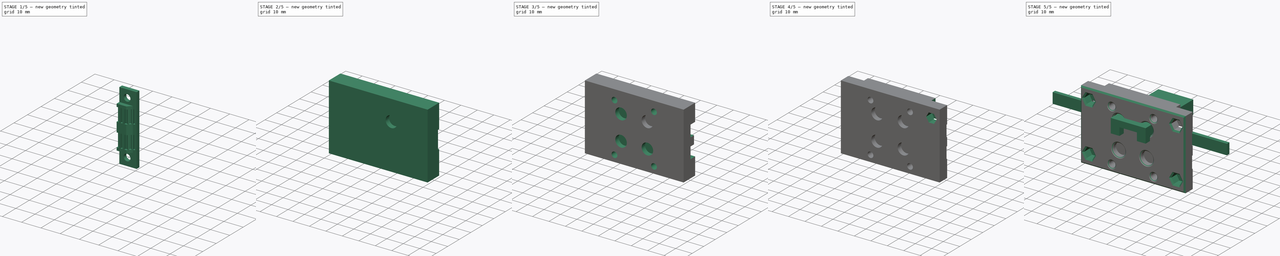
[diagram: build sequence overview — one tinted view per stage of 5, left to right]
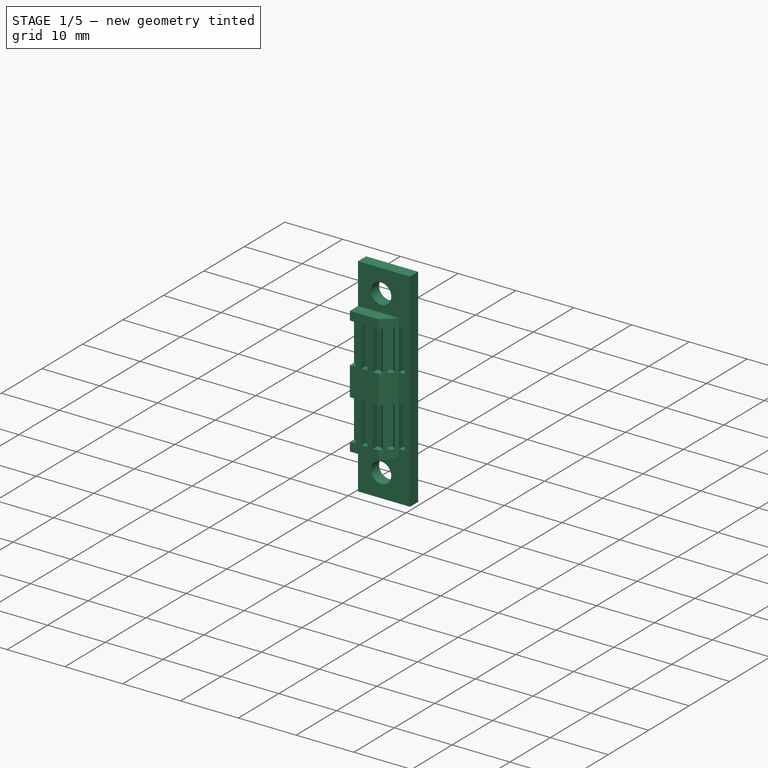
[diagram: stage 1 of 5 — iso view after this stage's code; geometry added in this stage tinted green]
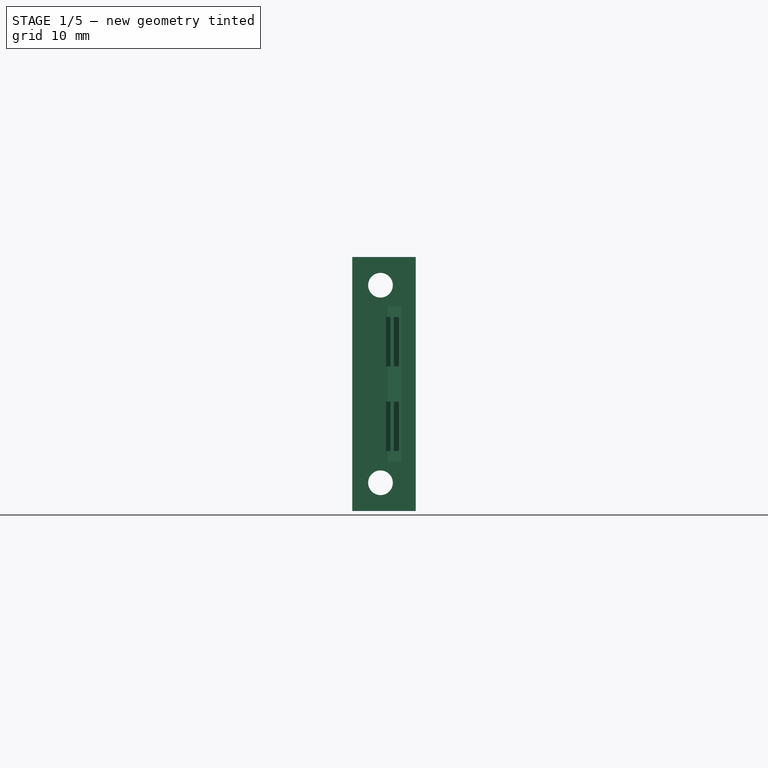
[diagram: stage 1 of 5 — front view after this stage's code; geometry added in this stage tinted green]
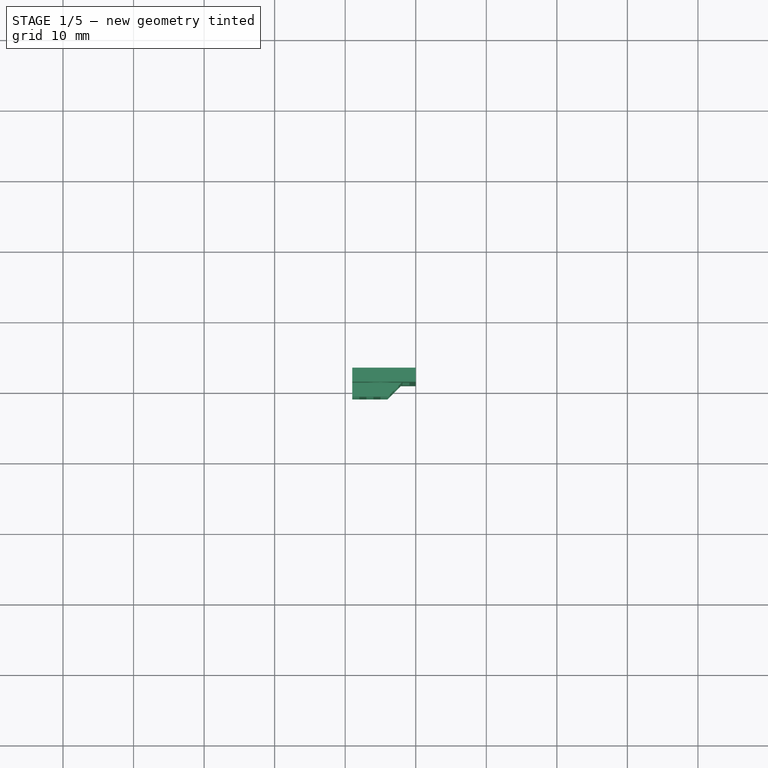
[diagram: stage 1 of 5 — top view after this stage's code; geometry added in this stage tinted green]
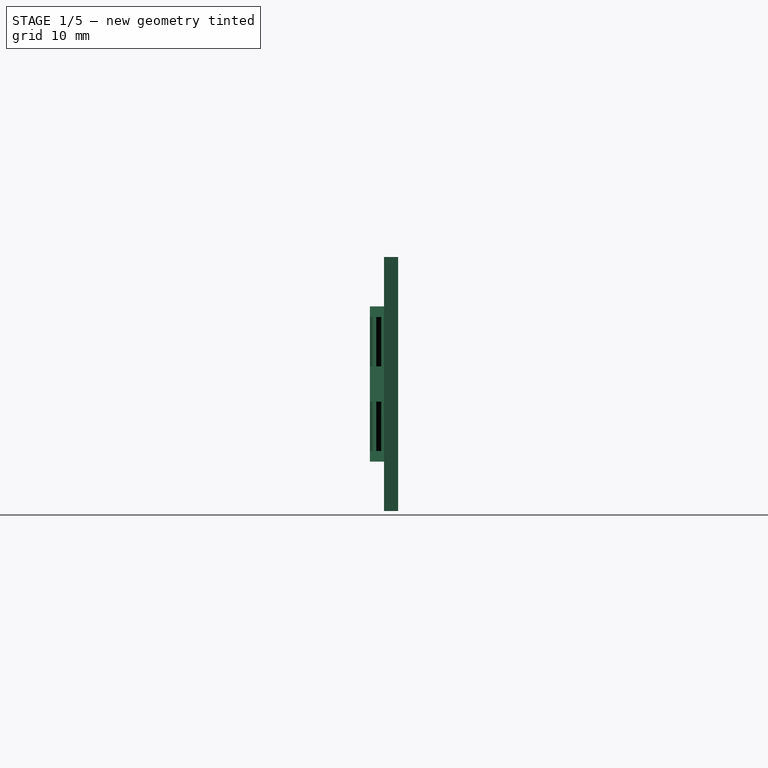
[diagram: stage 1 of 5 — right view after this stage's code; geometry added in this stage tinted green]
FCSTD DOCUMENT  (FreeCAD 1.0R39109 (Git))
Label: x-carriage
License: All rights reserved
LicenseURL: http://en.wikipedia.org/wiki/All_rights_reserved
objects: Sketcher::SketchObject×16, PartDesign::Pocket×11, PartDesign::Mirrored×8, PartDesign::Body×5, PartDesign::Pad×4, PartDesign::MultiTransform×3, PartDesign::Chamfer×2, Spreadsheet::Sheet×1, App::DocumentObjectGroup×1, PartDesign::FeatureBase×1, PartDesign::Groove×1, Part::Mirroring×1, App::Part×1
note: 116 computed .brp shape members not serialized (recipe doc carries the construction recipe); baked Part::Feature solids carry a one-line shape summary decoded from their .brp

FEATURE [PartDesign::Body] Body162  label="belt"
  AllowCompound = false
  Group = -> [Sketch475,Pad103]
  Origin = -> Origin309
  Tip = -> Pad103
FEATURE [Sketcher::SketchObject] Sketch476
  ArcFitTolerance = 1e-06
  AttachmentSupport = -> [XY_Plane309]
  FullyConstrained = true
  MakeInternals = false
  MapMode = 5
  sketch-geometry (6):
    g0: LineSegment StartX=28 StartY=-9 StartZ=0 EndX=30 EndY=-9 EndZ=0
    g1: LineSegment StartX=30 StartY=-9 StartZ=0 EndX=30 EndY=-7 EndZ=0
    g2: LineSegment StartX=30 StartY=-7 StartZ=0 EndX=21 EndY=-7 EndZ=0
    g3: LineSegment StartX=28 StartY=-9 StartZ=0 EndX=26 EndY=-11 EndZ=0
    g4: LineSegment StartX=26 StartY=-11 StartZ=0 EndX=21 EndY=-11 EndZ=0
    g5: LineSegment StartX=21 StartY=-11 StartZ=0 EndX=21 EndY=-7 EndZ=0
  constraints (18):
    c: Horizontal(g0)
    c: Coincident(g0,g1)
    c: Coincident(g1,g2)
    c: Horizontal(g2)
    c: Vertical(g1)
    c: DistanceX(g0) = 30
    c: DistanceY(g0) = -9
    c: Coincident(g0,g3)
    c: Coincident(g3,g4)
    c: Coincident(g4,g5)
    c: Coincident(g5,g2)
    c: Vertical(g5)
    c: Horizontal(g4)
    c: Angle(g3) = -2.35619
    c: DistanceX(g2) = 21
    c: DistanceY(g4) = -11
    c: DistanceY(g1) = -7
    c: DistanceX(g0,g0) = 2
FEATURE [PartDesign::Pad] Pad104
  Direction = (0,0,1)
  Length = 36
  Length2 = 10
  Midplane = true
  Profile = -> Sketch476
  ReferenceAxis = -> Sketch476 [N_Axis]
  Refine = true
  Suppressed = false
  Type = 0
FEATURE [Sketcher::SketchObject] Sketch477
  ArcFitTolerance = 1e-06
  AttachmentOffset = pos=(0,0,6) rot=(0,0,1;0rad)
  AttachmentSupport = -> [XY_Plane309]
  FullyConstrained = true
  MakeInternals = false
  MapMode = 5
  Placement = pos=(0,0,6) rot=(0,0,1;0rad)
  sketch-geometry (26):
    g0: LineSegment StartX=21 StartY=-8 StartZ=0 EndX=22 EndY=-8 EndZ=0
    g1: LineSegment StartX=22 StartY=-8 StartZ=0 EndX=22 EndY=-9 EndZ=0
    g2: LineSegment StartX=22 StartY=-9 StartZ=0 EndX=21 EndY=-9 EndZ=0
    g3: LineSegment StartX=21 StartY=-9 StartZ=0 EndX=21 EndY=-8 EndZ=0
    g4: LineSegment StartX=21 StartY=-10 StartZ=0 EndX=21 EndY=-11 EndZ=0
    g5: LineSegment StartX=21 StartY=-11 StartZ=0 EndX=22 EndY=-11 EndZ=0
    g6: LineSegment StartX=22 StartY=-11 StartZ=0 EndX=22 EndY=-10 EndZ=0
    g7: LineSegment StartX=22 StartY=-10 StartZ=0 EndX=21 EndY=-10 EndZ=0
    g8: LineSegment StartX=23 StartY=-10 StartZ=0 EndX=23 EndY=-11 EndZ=0
    g9: LineSegment StartX=23 StartY=-11 StartZ=0 EndX=24 EndY=-11 EndZ=0
    g10: LineSegment StartX=24 StartY=-11 StartZ=0 EndX=24 EndY=-10 EndZ=0
    g11: LineSegment StartX=24 StartY=-10 StartZ=0 EndX=23 EndY=-10 EndZ=0
    g12: LineSegment StartX=25 StartY=-10 StartZ=0 EndX=25 EndY=-11 EndZ=0
    g13: LineSegment StartX=25 StartY=-11 StartZ=0 EndX=26.8 EndY=-11 EndZ=0
    g14: LineSegment StartX=26.8 StartY=-11 StartZ=0 EndX=25.8 EndY=-10 EndZ=0
    g15: LineSegment StartX=25.8 StartY=-10 StartZ=0 EndX=25 EndY=-10 EndZ=0
    g16: LineSegment StartX=27.6021 StartY=-9.39792 StartZ=0 EndX=26.895 EndY=-8.69081 EndZ=0
    g17: LineSegment StartX=26.895 StartY=-8.69081 StartZ=0 EndX=26.1879 EndY=-9.39792 EndZ=0
    g18: LineSegment StartX=26.1879 StartY=-9.39792 StartZ=0 EndX=26.895 EndY=-10.105 EndZ=0
    g19: LineSegment StartX=26.895 StartY=-10.105 StartZ=0 EndX=27.6021 EndY=-9.39792 EndZ=0
    g20: LineSegment StartX=28.1 StartY=-8 StartZ=0 EndX=28.1 EndY=-9 EndZ=0
    g21: LineSegment StartX=28.1 StartY=-9 StartZ=0 EndX=29.1 EndY=-9 EndZ=0
    g22: LineSegment StartX=29.1 StartY=-9 StartZ=0 EndX=29.1 EndY=-8 EndZ=0
    g23: LineSegment StartX=29.1 StartY=-8 StartZ=0 EndX=28.1 EndY=-8 EndZ=0
    g24: GeomPoint X=28.6 Y=-9 Z=0
    g25: GeomPoint X=26 Y=-11 Z=0
  constraints (75):
    c: Horizontal(g0)
    c: Coincident(g0,g1)
    c: Vertical(g1)
    c: Coincident(g1,g2)
    c: Horizontal(g2)
    c: Coincident(g2,g3)
    c: Coincident(g3,g0)
    c: Vertical(g3)
    c: Coincident(g4,g5)
    c: Coincident(g5,g6)
    c: Coincident(g6,g7)
    c: Coincident(g7,g4)
    c: Vertical(g4)
    c: Vertical(g6)
    c: Horizontal(g5)
    c: Horizontal(g7)
    c: Coincident(g8,g9)
    c: Coincident(g9,g10)
    c: Coincident(g10,g11)
    c: Coincident(g11,g8)
    c: Vertical(g8)
    c: Vertical(g10)
    c: Horizontal(g9)
    c: Horizontal(g11)
    c: Coincident(g12,g13)
    c: Coincident(g13,g14)
    c: Coincident(g14,g15)
    c: Coincident(g15,g12)
    c: Vertical(g12)
    c: Horizontal(g13)
    c: Horizontal(g15)
    c: Horizontal(g12,g9)
    c: Vertical(g4,g2)
    c: Vertical(g6,g1)
    c: Horizontal(g10,g12)
    c: Equal(g11,g6)
    c: DistanceX(g11,g11) = 1
    c: DistanceY(g9) = -11
    c: DistanceX(g4) = 21
    c: DistanceY(g6,g1) = 1
    c: DistanceX(g9,g12) = 1
    c: DistanceY(g14,g14) = 1
    c: Equal(g5,g8)
    c: Horizontal(g5,g8)
    c: Equal(g1,g6)
    c: DistanceX(g6,g8) = 1
    c: DistanceX(g15,g15) = 0.8
    c: Angle(g14) = 2.35619
    c: Coincident(g16,g17)
    c: Coincident(g17,g18)
    c: Coincident(g18,g19)
    c: Coincident(g19,g16)
    c: Parallel(g19,g17)
    c: Parallel(g18,g16)
    c: Perpendicular(g16,g19)
    c: Parallel(g16,g14)
    c: Distance(g18,g14) = 0.7
    c: Distance(g19) = 1
    c: Distance(g18) = 1
    c: Coincident(g20,g21)
    c: Coincident(g21,g22)
    c: Coincident(g22,g23)
    c: Coincident(g23,g20)
    c: Vertical(g20)
    c: Vertical(g22)
    c: Horizontal(g21)
    c: Horizontal(g23)
    c: Equal(g20,g23)
    c: Equal(g23,g16)
    c: Symmetric(g21,g21,g24)
    c: DistanceY(g24) = -9
    c: DistanceX(g24) = 28.6
    c: PointOnObject(g25,g13)
    c: DistanceX(g12,g25) = 1
    c: PointOnObject(g25,g19)
FEATURE [PartDesign::Pocket] Pocket004
  BaseFeature = -> Pad104
  Direction = (0,0,-1)
  Length = 7
  Length2 = 5
  Midplane = true
  Profile = -> Sketch477
  ReferenceAxis = -> Sketch477 [N_Axis]
  Refine = true
  Suppressed = false
  Type = 0
FEATURE [PartDesign::Mirrored] Mirrored004
  BaseFeature = -> Pocket004
  MirrorPlane = -> XY_Plane309
  Originals = -> [Pocket004]
  Refine = true
  Suppressed = false
  TransformMode = 0
FEATURE [Sketcher::SketchObject] Sketch478
  ArcFitTolerance = 1e-06
  AttachmentSupport = -> [YZ_Plane309]
  FullyConstrained = true
  MakeInternals = false
  MapMode = 5
  Placement = pos=(0,0,0) rot=(0.57735,0.57735,0.57735;2.0944rad)
  sketch-geometry (8):
    g0: LineSegment StartX=-11 StartY=18 StartZ=0 EndX=-11 EndY=11 EndZ=0
    g1: LineSegment StartX=-11 StartY=11 StartZ=0 EndX=-9 EndY=11 EndZ=0
    g2: LineSegment StartX=-9 StartY=11 StartZ=0 EndX=-9 EndY=18 EndZ=0
    g3: LineSegment StartX=-9 StartY=18 StartZ=0 EndX=-11 EndY=18 EndZ=0
    g4: LineSegment StartX=-11 StartY=-11 StartZ=0 EndX=-11 EndY=-18 EndZ=0
    g5: LineSegment StartX=-11 StartY=-18 StartZ=0 EndX=-9 EndY=-18 EndZ=0
    g6: LineSegment StartX=-9 StartY=-18 StartZ=0 EndX=-9 EndY=-11 EndZ=0
    g7: LineSegment StartX=-9 StartY=-11 StartZ=0 EndX=-11 EndY=-11 EndZ=0
  constraints (22):
    c: Coincident(g0,g1)
    c: Coincident(g1,g2)
    c: Coincident(g2,g3)
    c: Coincident(g3,g0)
    c: Vertical(g0)
    c: Vertical(g2)
    c: Horizontal(g1)
    c: Horizontal(g3)
    c: Coincident(g4,g5)
    c: Coincident(g5,g6)
    c: Coincident(g6,g7)
    c: Coincident(g7,g4)
    c: Vertical(g4)
    c: Vertical(g6)
    c: Horizontal(g5)
    c: Horizontal(g7)
    c: Symmetric(g5,g2,g-1)
    c: Symmetric(g0,g4,g-1)
    c: DistanceY(g5,g2) = 36
    c: DistanceX(g0) = -11
    c: DistanceY(g2,g2) = 7
    c: DistanceX(g1,g1) = 2
FEATURE [PartDesign::Pocket] Pocket005
  BaseFeature = -> Mirrored004
  Direction = (-1,0,0)
  Length = 5
  Length2 = 5
  Midplane = true
  Profile = -> Sketch478
  ReferenceAxis = -> Sketch478 [N_Axis]
  Refine = true
  Suppressed = false
  Type = 1
FEATURE [Sketcher::SketchObject] Sketch479
  ArcFitTolerance = 1e-06
  AttachmentSupport = -> [XZ_Plane309]
  FullyConstrained = true
  MakeInternals = false
  MapMode = 5
  Placement = pos=(0,0,0) rot=(1,0,0;1.5708rad)
  sketch-geometry (2):
    g0: Circle CenterX=25 CenterY=14 CenterZ=0 NormalX=0 NormalY=0 NormalZ=1 AngleXU=0 Radius=1.75
    g1: Circle CenterX=25 CenterY=-14 CenterZ=0 NormalX=0 NormalY=0 NormalZ=1 AngleXU=0 Radius=1.75
  constraints (5):
    c: Symmetric(g1,g0,g-1)
    c: Equal(g0,g1)
    c: Diameter(g0) = 3.5
    c: DistanceX(g0) = 25
    c: DistanceY(g0) = 14
FEATURE [PartDesign::Pocket] Pocket006
  BaseFeature = -> Pocket005
  Direction = (0,1,-2e-16)
  Length = 5
  Length2 = 5
  Midplane = true
  Profile = -> Sketch479
  ReferenceAxis = -> Sketch479 [N_Axis]
  Refine = true
  Suppressed = false
  Type = 1
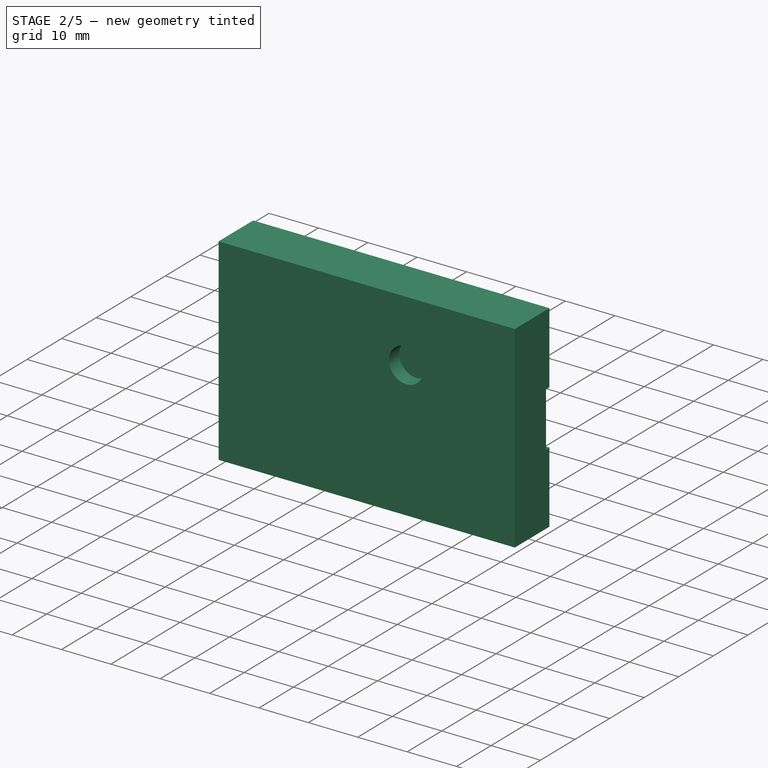
[diagram: stage 2 of 5 — iso view after this stage's code; geometry added in this stage tinted green]
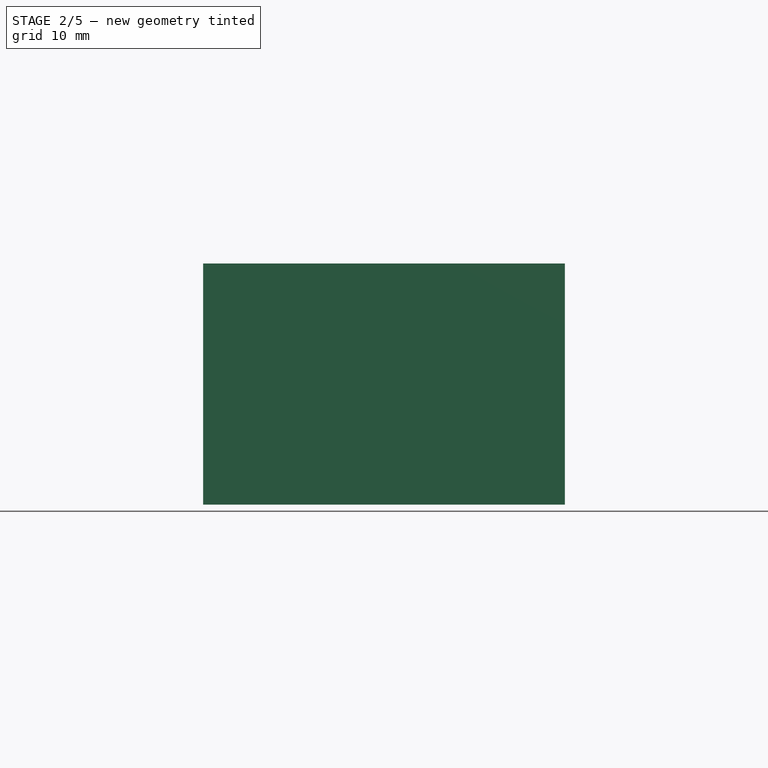
[diagram: stage 2 of 5 — front view after this stage's code; geometry added in this stage tinted green]
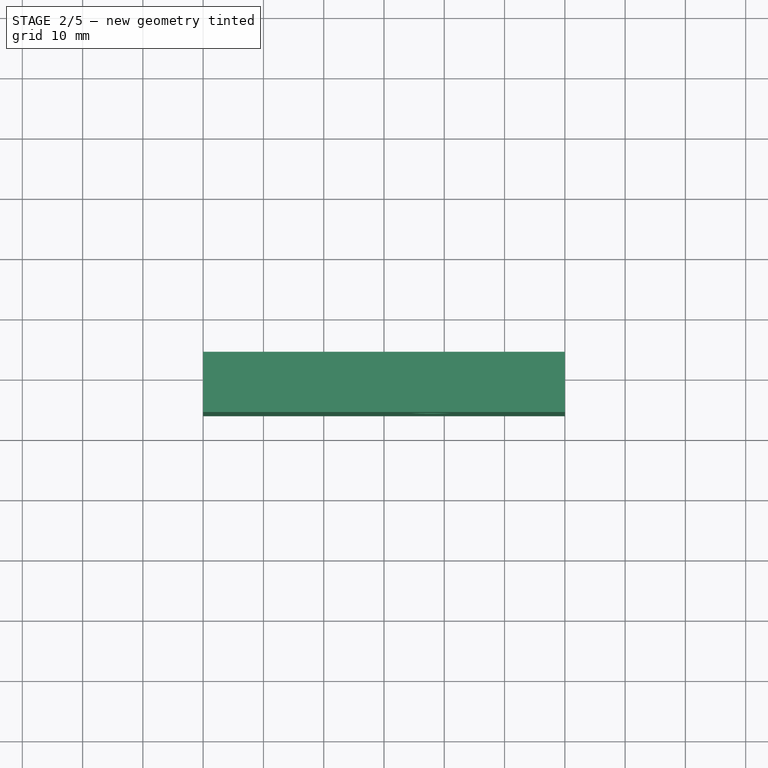
[diagram: stage 2 of 5 — top view after this stage's code; geometry added in this stage tinted green]
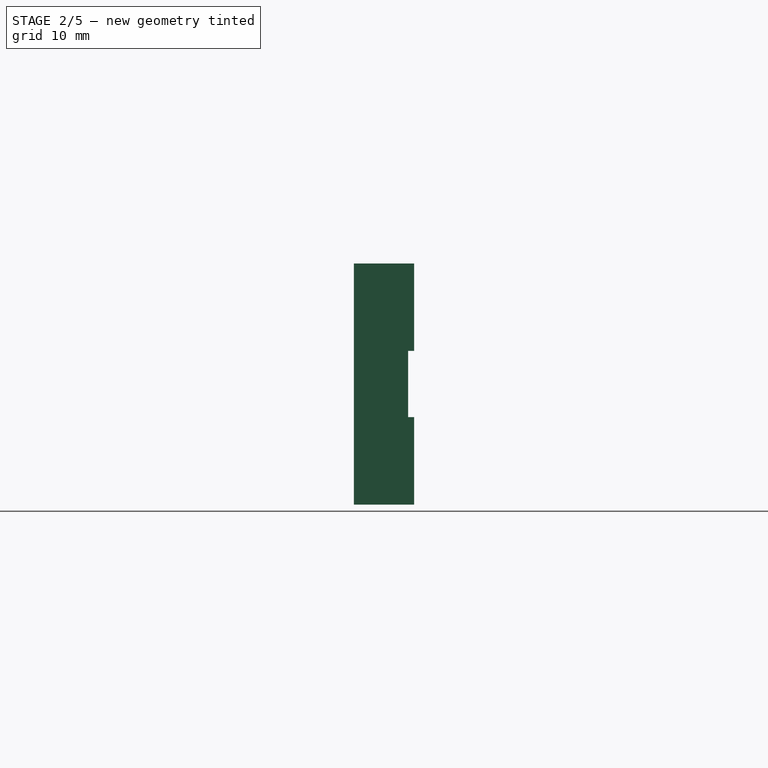
[diagram: stage 2 of 5 — right view after this stage's code; geometry added in this stage tinted green]
FEATURE [PartDesign::Body] Body161  label="mgn9h-carriage-x"
  AllowCompound = false
  Group = -> [Clone]
  Origin = -> Origin307
  Placement = pos=(0,2,0) rot=(0.577,-0.577,0.577;2.0944rad)
  Tip = -> Clone
FEATURE [Sketcher::SketchObject] Sketch
  ArcFitTolerance = 1e-06
  AttachmentSupport = -> [YZ_Plane307]
  FullyConstrained = true
  MakeInternals = false
  MapMode = 5
  Placement = pos=(0,0,0) rot=(0.57735,0.57735,0.57735;2.0944rad)
  sketch-geometry (8):
    g0: LineSegment StartX=-6 StartY=20 StartZ=0 EndX=-16 EndY=20 EndZ=0
    g1: LineSegment StartX=-16 StartY=20 StartZ=0 EndX=-16 EndY=-20 EndZ=0
    g2: LineSegment StartX=-16 StartY=-20 StartZ=0 EndX=-6 EndY=-20 EndZ=0
    g3: LineSegment StartX=-6 StartY=-20 StartZ=0 EndX=-6 EndY=-5.5 EndZ=0
    g4: LineSegment StartX=-6 StartY=-5.5 StartZ=0 EndX=-7 EndY=-5.5 EndZ=0
    g5: LineSegment StartX=-7 StartY=-5.5 StartZ=0 EndX=-7 EndY=5.5 EndZ=0
    g6: LineSegment StartX=-7 StartY=5.5 StartZ=0 EndX=-6 EndY=5.5 EndZ=0
    g7: LineSegment StartX=-6 StartY=5.5 StartZ=0 EndX=-6 EndY=20 EndZ=0
  constraints (22):
    c: Horizontal(g0)
    c: Coincident(g0,g1)
    c: Coincident(g1,g2)
    c: Horizontal(g2)
    c: Coincident(g2,g3)
    c: Vertical(g3)
    c: Coincident(g3,g4)
    c: Horizontal(g4)
    c: Coincident(g4,g5)
    c: Vertical(g5)
    c: Coincident(g5,g6)
    c: Horizontal(g6)
    c: Coincident(g6,g7)
    c: Coincident(g7,g0)
    c: Vertical(g7)
    c: Symmetric(g0,g1,g-1)
    c: Symmetric(g6,g3,g-1)
    c: DistanceX(g4) = -7
    c: DistanceX(g3) = -6
    c: DistanceY(g5,g5) = 11
    c: DistanceY(g1,g1) = 40
    c: DistanceX(g0) = -16
FEATURE [PartDesign::Pad] Pad
  Direction = (1,0,0)
  Length = 60
  Length2 = 10
  Midplane = true
  Placement = pos=(0,0,0) rot=(1,1,1;2.0944rad)
  Profile = -> Sketch
  ReferenceAxis = -> Sketch [N_Axis]
  Refine = true
  Suppressed = false
  Type = 0
FEATURE [Sketcher::SketchObject] Sketch469
  ArcFitTolerance = 1e-06
  AttachmentSupport = -> [XZ_Plane307]
  FullyConstrained = true
  MakeInternals = false
  MapMode = 5
  Placement = pos=(0,0,0) rot=(1,0,0;1.5708rad)
  sketch-geometry (4):
    g0: LineSegment StartX=-20.5 StartY=10.5 StartZ=0 EndX=-20.5 EndY=-10.5 EndZ=0
    g1: LineSegment StartX=-20.5 StartY=-10.5 StartZ=0 EndX=20.5 EndY=-10.5 EndZ=0
    g2: LineSegment StartX=20.5 StartY=-10.5 StartZ=0 EndX=20.5 EndY=10.5 EndZ=0
    g3: LineSegment StartX=20.5 StartY=10.5 StartZ=0 EndX=-20.5 EndY=10.5 EndZ=0
  constraints (11):
    c: Coincident(g0,g1)
    c: Coincident(g1,g2)
    c: Coincident(g2,g3)
    c: Coincident(g3,g0)
    c: Vertical(g0)
    c: Vertical(g2)
    c: Horizontal(g1)
    c: Horizontal(g3)
    c: Symmetric(g0,g1,g-1)
    c: DistanceY(g2,g2) = 21
    c: DistanceX(g3,g3) = 41
FEATURE [PartDesign::Pocket] Pocket
  BaseFeature = -> Pad
  Direction = (0,1,-2e-16)
  Length = 8
  Length2 = 5
  Placement = pos=(0,0,0) rot=(1,1,1;2.0944rad)
  Profile = -> Sketch469
  ReferenceAxis = -> Sketch469 [N_Axis]
  Refine = true
  Reversed = true
  Suppressed = false
  Type = 0
FEATURE [Sketcher::SketchObject] Sketch470
  ArcFitTolerance = 1e-06
  AttachmentOffset = pos=(8,0,7.5) rot=(0,0,1;0rad)
  AttachmentSupport = -> [XY_Plane307]
  FullyConstrained = true
  MakeInternals = false
  MapMode = 5
  Placement = pos=(8,0,7.5) rot=(0,0,1;0rad)
  sketch-geometry (8):
    g0: LineSegment StartX=0 StartY=0 StartZ=0 EndX=1.75 EndY=0 EndZ=0
    g1: LineSegment StartX=1.75 StartY=0 StartZ=0 EndX=1.75 EndY=-12.7 EndZ=0
    g2: LineSegment StartX=1.75 StartY=-12.7 StartZ=0 EndX=0 EndY=-12.7 EndZ=0
    g3: LineSegment StartX=0 StartY=-12.7 StartZ=0 EndX=0 EndY=0 EndZ=0
    g4: LineSegment StartX=0 StartY=-13 StartZ=0 EndX=3.5 EndY=-13 EndZ=0
    g5: LineSegment StartX=3.5 StartY=-13 StartZ=0 EndX=3.5 EndY=-16 EndZ=0
    g6: LineSegment StartX=3.5 StartY=-16 StartZ=0 EndX=0 EndY=-16 EndZ=0
    g7: LineSegment StartX=0 StartY=-16 StartZ=0 EndX=0 EndY=-13 EndZ=0
  constraints (23):
    c: Coincident(g-1,g0)
    c: PointOnObject(g0,g-1)
    c: Coincident(g0,g1)
    c: Vertical(g1)
    c: Coincident(g1,g2)
    c: Horizontal(g2)
    c: Coincident(g2,g3)
    c: Coincident(g3,g0)
    c: Vertical(g3)
    c: PointOnObject(g4,g-2)
    c: Horizontal(g4)
    c: Coincident(g4,g5)
    c: Vertical(g5)
    c: Coincident(g5,g6)
    c: Horizontal(g6)
    c: Coincident(g6,g7)
    c: Coincident(g7,g4)
    c: Vertical(g7)
    c: DistanceY(g4,g2) = 0.3
    c: DistanceY(g4) = -13
    c: DistanceX(g0,g0) = 1.75
    c: DistanceX(g6,g6) = 3.5
    c: DistanceY(g5) = -16
FEATURE [PartDesign::Groove] Groove
  Angle = 360
  Angle2 = 60
  Axis = (0,1,0)
  Base = (8,0,7.5)
  BaseFeature = -> Pocket
  Placement = pos=(0,0,0) rot=(1,1,1;2.0944rad)
  Profile = -> Sketch470
  ReferenceAxis = -> Sketch470 [V_Axis]
  Refine = true
  Suppressed = false
  Type = 0
FEATURE [PartDesign::Body] Body  label="x-carriage"
  AllowCompound = false
  Group = -> [Sketch,Pad,Sketch469,Pocket,Sketch470,Groove,MultiTransform,Mirrored,Mirrored001,Sketch471,Pocket001,Sketch472,Pocket002,Sketch473,Pocket003,MultiTransform001,Mirrored002,Mirrored003,Sketch480,Pocket007,Sketch481,Pocket008,Sketch482,Pocket009,Sketch483,Pocket010,Mirrored005,MultiTransform002,Mirrored006,Mirrored007,Chamfer]
  Origin = -> Origin308
  Tip = -> Chamfer
FEATURE [PartDesign::Chamfer] Chamfer001
  Angle = 45
  Base = -> Pocket006 [Face54]
  BaseFeature = -> Pocket006
  ChamferType = 0
  FlipDirection = false
  Refine = true
  Size = 0.75
  Size2 = 1
  SupportTransform = false
  Suppressed = false
  UseAllEdges = false
FEATURE [PartDesign::Body] Body163  label="belt-clamp-right"
  AllowCompound = false
  Group = -> [Sketch476,Pad104,Sketch477,Pocket004,Mirrored004,Sketch478,Pocket005,Sketch479,Pocket006,Chamfer001]
  Origin = -> Origin310
  Tip = -> Chamfer001
FEATURE [Part::Mirroring] Part__Mirroring  label="belt-clamp-left"
  Base = (0,0,0)
  Normal = (1,0,0)
  Source = -> Body163
FEATURE [App::Part] Part  label="main"
  Group = -> [Body161,Body,Body162,Body163,Part__Mirroring]
  Origin = -> Origin
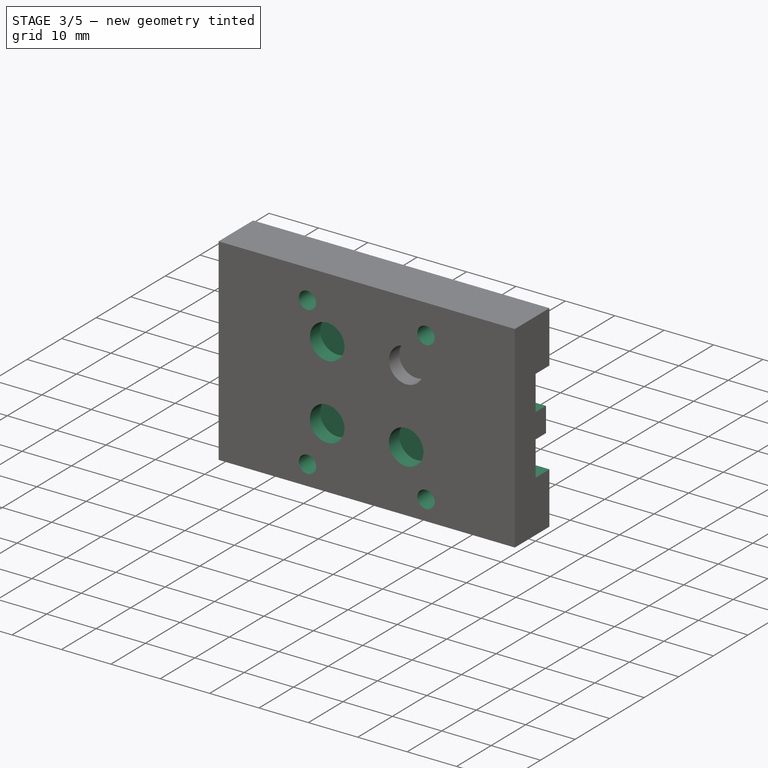
[diagram: stage 3 of 5 — iso view after this stage's code; geometry added in this stage tinted green]
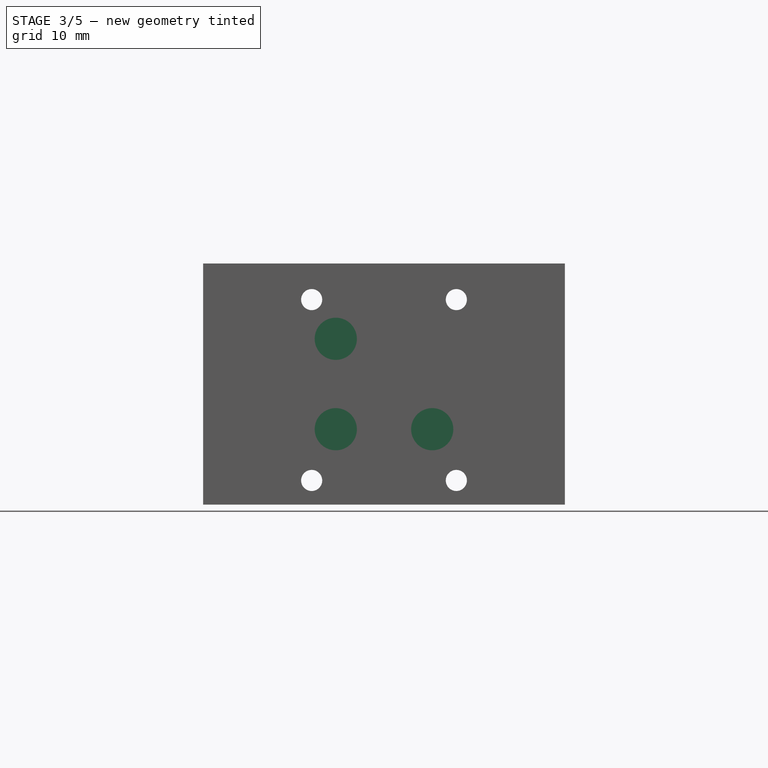
[diagram: stage 3 of 5 — front view after this stage's code; geometry added in this stage tinted green]
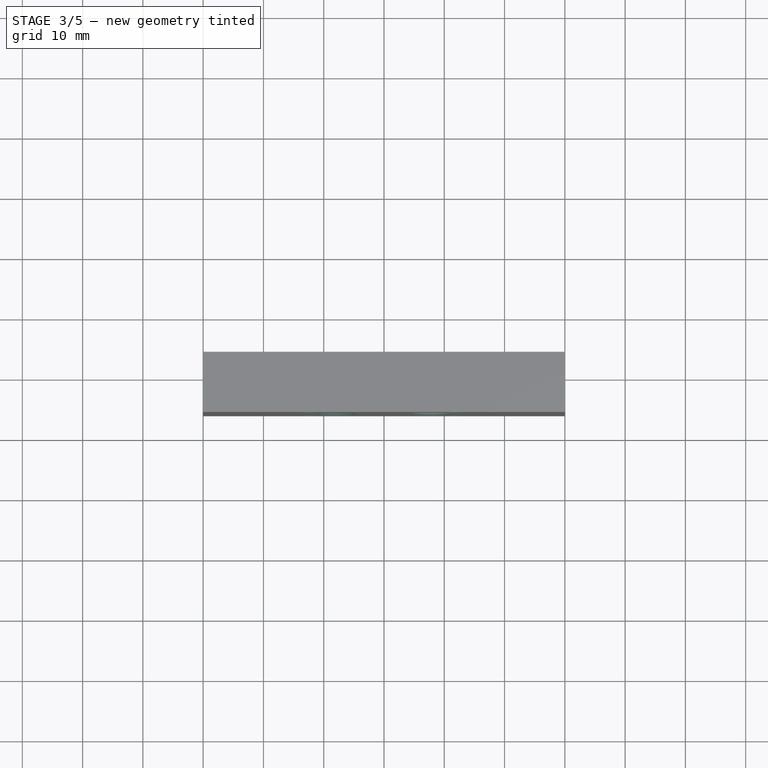
[diagram: stage 3 of 5 — top view after this stage's code; geometry added in this stage tinted green]
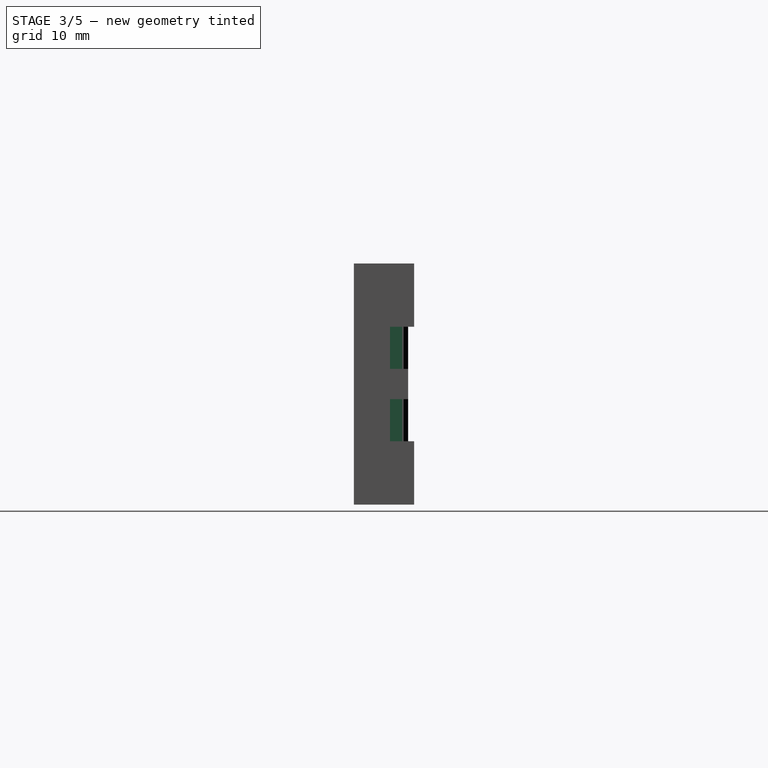
[diagram: stage 3 of 5 — right view after this stage's code; geometry added in this stage tinted green]
FEATURE [PartDesign::Mirrored] Mirrored
  MirrorPlane = -> XY_Plane307
  Placement = pos=(0,0,0) rot=(1,1,1;2.0944rad)
  Refine = true
  Suppressed = false
  TransformMode = 0
FEATURE [PartDesign::Mirrored] Mirrored001
  MirrorPlane = -> YZ_Plane307
  Placement = pos=(0,0,0) rot=(1,1,1;2.0944rad)
  Refine = true
  Suppressed = false
  TransformMode = 0
FEATURE [PartDesign::MultiTransform] MultiTransform
  BaseFeature = -> Groove
  Originals = -> [Groove]
  Placement = pos=(0,0,0) rot=(1,1,1;2.0944rad)
  Refine = true
  Suppressed = false
  TransformMode = 0
  Transformations = -> [Mirrored,Mirrored001]
FEATURE [Sketcher::SketchObject] Sketch471
  ArcFitTolerance = 1e-06
  AttachmentSupport = -> [XZ_Plane307]
  FullyConstrained = true
  MakeInternals = false
  MapMode = 5
  Placement = pos=(0,0,0) rot=(1,0,0;1.5708rad)
  sketch-geometry (28):
    g0: LineSegment StartX=-10.4123 StartY=11.25 StartZ=0 EndX=-8.82457 EndY=14 EndZ=0
    g1: LineSegment StartX=-8.82457 StartY=14 StartZ=0 EndX=-10.4123 EndY=16.75 EndZ=0
    g2: LineSegment StartX=-10.4123 StartY=16.75 StartZ=0 EndX=-13.5877 EndY=16.75 EndZ=0
    g3: LineSegment StartX=-13.5877 StartY=16.75 StartZ=0 EndX=-15.1754 EndY=14 EndZ=0
    g4: LineSegment StartX=-15.1754 StartY=14 StartZ=0 EndX=-13.5877 EndY=11.25 EndZ=0
    g5: LineSegment StartX=-13.5877 StartY=11.25 StartZ=0 EndX=-10.4123 EndY=11.25 EndZ=0
    g6: Circle [constr] CenterX=-12 CenterY=14 CenterZ=0 NormalX=0 NormalY=0 NormalZ=1 AngleXU=0 Radius=3.17543
    g7: LineSegment StartX=15.1754 StartY=14 StartZ=0 EndX=13.5877 EndY=16.75 EndZ=0
    g8: LineSegment StartX=13.5877 StartY=16.75 StartZ=0 EndX=10.4123 EndY=16.75 EndZ=0
    g9: LineSegment StartX=10.4123 StartY=16.75 StartZ=0 EndX=8.82457 EndY=14 EndZ=0
    g10: LineSegment StartX=8.82457 StartY=14 StartZ=0 EndX=10.4123 EndY=11.25 EndZ=0
    g11: LineSegment StartX=10.4123 StartY=11.25 StartZ=0 EndX=13.5877 EndY=11.25 EndZ=0
    g12: LineSegment StartX=13.5877 StartY=11.25 StartZ=0 EndX=15.1754 EndY=14 EndZ=0
    g13: Circle [constr] CenterX=12 CenterY=14 CenterZ=0 NormalX=0 NormalY=0 NormalZ=1 AngleXU=0 Radius=3.17543
    g14: LineSegment StartX=15.1754 StartY=-16 StartZ=0 EndX=13.5877 EndY=-13.25 EndZ=0
    g15: LineSegment StartX=13.5877 StartY=-13.25 StartZ=0 EndX=10.4123 EndY=-13.25 EndZ=0
    g16: LineSegment StartX=10.4123 StartY=-13.25 StartZ=0 EndX=8.82457 EndY=-16 EndZ=0
    g17: LineSegment StartX=8.82457 StartY=-16 StartZ=0 EndX=10.4123 EndY=-18.75 EndZ=0
    g18: LineSegment StartX=10.4123 StartY=-18.75 StartZ=0 EndX=13.5877 EndY=-18.75 EndZ=0
    g19: LineSegment StartX=13.5877 StartY=-18.75 StartZ=0 EndX=15.1754 EndY=-16 EndZ=0
    g20: Circle [constr] CenterX=12 CenterY=-16 CenterZ=0 NormalX=0 NormalY=0 NormalZ=1 AngleXU=0 Radius=3.17543
    g21: LineSegment StartX=-8.82457 StartY=-16 StartZ=0 EndX=-10.4123 EndY=-13.25 EndZ=0
    g22: LineSegment StartX=-10.4123 StartY=-13.25 StartZ=0 EndX=-13.5877 EndY=-13.25 EndZ=0
    g23: LineSegment StartX=-13.5877 StartY=-13.25 StartZ=0 EndX=-15.1754 EndY=-16 EndZ=0
    g24: LineSegment StartX=-15.1754 StartY=-16 StartZ=0 EndX=-13.5877 EndY=-18.75 EndZ=0
    g25: LineSegment StartX=-13.5877 StartY=-18.75 StartZ=0 EndX=-10.4123 EndY=-18.75 EndZ=0
    g26: LineSegment StartX=-10.4123 StartY=-18.75 StartZ=0 EndX=-8.82457 EndY=-16 EndZ=0
    g27: Circle [constr] CenterX=-12 CenterY=-16 CenterZ=0 NormalX=0 NormalY=0 NormalZ=1 AngleXU=0 Radius=3.17543
  constraints (66):
    c: Coincident(g0,g1)
    c: Coincident(g1,g2)
    c: Coincident(g2,g3)
    c: Coincident(g3,g4)
    c: Coincident(g4,g5)
    c: Coincident(g5,g0)
    c: Equal(g0, g1-g5) x5
    c: PointOnObject(g0,g6)
    c: PointOnObject(g1,g6)
    c: PointOnObject(g2,g6)
    c: PointOnObject(g3,g6)
    c: PointOnObject(g4,g6)
    c: PointOnObject(g5,g6)
    c: Horizontal(g2)
    c: DistanceY(g0,g1) = 5.5
    c: DistanceX(g6) = -12
    c: DistanceY(g6) = 14
    c: Coincident(g7,g8)
    c: Coincident(g8,g9)
    c: Coincident(g9,g10)
    c: Coincident(g10,g11)
    c: Coincident(g11,g12)
    c: Coincident(g12,g7)
    c: Equal(g7, g8-g12) x5
    c: PointOnObject(g7,g13)
    c: PointOnObject(g8,g13)
    c: PointOnObject(g9,g13)
    c: PointOnObject(g10,g13)
    c: PointOnObject(g11,g13)
    c: PointOnObject(g12,g13)
    c: Coincident(g14,g15)
    c: Coincident(g15,g16)
    c: Coincident(g16,g17)
    c: Coincident(g17,g18)
    c: Coincident(g18,g19)
    c: Coincident(g19,g14)
    c: Equal(g14, g15-g19) x5
    c: PointOnObject(g14,g20)
    c: PointOnObject(g15,g20)
    c: PointOnObject(g16,g20)
    c: PointOnObject(g17,g20)
    c: PointOnObject(g18,g20)
    c: PointOnObject(g19,g20)
    c: Coincident(g21,g22)
    c: Coincident(g22,g23)
    c: Coincident(g23,g24)
    c: Coincident(g24,g25)
    c: Coincident(g25,g26)
    c: Coincident(g26,g21)
    c: Equal(g21, g22-g26) x5
    c: PointOnObject(g21,g27)
    c: PointOnObject(g22,g27)
    c: PointOnObject(g23,g27)
    c: PointOnObject(g24,g27)
    c: PointOnObject(g25,g27)
    c: PointOnObject(g26,g27)
    c: Equal(g27,g6)
    c: Equal(g6,g13)
    c: Equal(g13,g20)
    c: Horizontal(g22)
    c: Horizontal(g15)
    c: Horizontal(g8)
    c: Symmetric(g13,g6,g-2)
    c: Symmetric(g27,g20,g-2)
    c: Vertical(g27,g6)
    c: DistanceY(g27) = -16
FEATURE [PartDesign::Pocket] Pocket001
  BaseFeature = -> MultiTransform
  Direction = (0,1,-2e-16)
  Length = 10
  Length2 = 5
  Placement = pos=(0,0,0) rot=(1,1,1;2.0944rad)
  Profile = -> Sketch471
  ReferenceAxis = -> Sketch471 [N_Axis]
  Refine = true
  Reversed = true
  Suppressed = false
  Type = 0
FEATURE [Sketcher::SketchObject] Sketch472
  ArcFitTolerance = 1e-06
  AttachmentSupport = -> [XZ_Plane307]
  FullyConstrained = true
  MakeInternals = false
  MapMode = 5
  Placement = pos=(0,0,0) rot=(1,0,0;1.5708rad)
  sketch-geometry (4):
    g0: Circle CenterX=-12 CenterY=14 CenterZ=0 NormalX=0 NormalY=0 NormalZ=1 AngleXU=0 Radius=1.75
    g1: Circle CenterX=-12 CenterY=-16 CenterZ=0 NormalX=0 NormalY=0 NormalZ=1 AngleXU=0 Radius=1.75
    g2: Circle CenterX=12 CenterY=-16 CenterZ=0 NormalX=0 NormalY=0 NormalZ=1 AngleXU=0 Radius=1.75
    g3: Circle CenterX=12 CenterY=14 CenterZ=0 NormalX=0 NormalY=0 NormalZ=1 AngleXU=0 Radius=1.75
  constraints (10):
    c: DistanceX(g0) = -12
    c: Diameter(g0) = 3.5
    c: DistanceY(g0) = 14
    c: Symmetric(g3,g0,g-2)
    c: Equal(g0,g3)
    c: Symmetric(g2,g1,g-2)
    c: Equal(g1,g2)
    c: Vertical(g2,g3)
    c: DistanceY(g2) = -16
    c: Equal(g1,g0)
FEATURE [PartDesign::Pocket] Pocket002
  BaseFeature = -> Pocket001
  Direction = (0,1,-2e-16)
  Length = 5
  Length2 = 5
  Midplane = true
  Placement = pos=(0,0,0) rot=(1,1,1;2.0944rad)
  Profile = -> Sketch472
  ReferenceAxis = -> Sketch472 [N_Axis]
  Refine = true
  Suppressed = false
  Type = 1
FEATURE [Sketcher::SketchObject] Sketch473
  ArcFitTolerance = 1e-06
  AttachmentOffset = pos=(0,0,6) rot=(0,0,1;0rad)
  AttachmentSupport = -> [XY_Plane307]
  FullyConstrained = true
  MakeInternals = false
  MapMode = 5
  Placement = pos=(0,0,6) rot=(0,0,1;0rad)
  sketch-geometry (6):
    g0: LineSegment StartX=19.5 StartY=0 StartZ=0 EndX=19.5 EndY=-12 EndZ=0
    g1: LineSegment StartX=30 StartY=-10 StartZ=0 EndX=30 EndY=0 EndZ=0
    g2: LineSegment StartX=30 StartY=0 StartZ=0 EndX=19.5 EndY=0 EndZ=0
    g3: LineSegment StartX=30 StartY=-10 StartZ=0 EndX=29 EndY=-10 EndZ=0
    g4: LineSegment StartX=29 StartY=-10 StartZ=0 EndX=27 EndY=-12 EndZ=0
    g5: LineSegment StartX=27 StartY=-12 StartZ=0 EndX=19.5 EndY=-12 EndZ=0
  constraints (18):
    c: Coincident(g1,g2)
    c: Coincident(g2,g0)
    c: Vertical(g0)
    c: Vertical(g1)
    c: Horizontal(g2)
    c: PointOnObject(g1,g-1)
    c: DistanceX(g1) = 30
    c: DistanceX(g0) = 19.5
    c: Coincident(g1,g3)
    c: Horizontal(g3)
    c: Coincident(g3,g4)
    c: Coincident(g4,g5)
    c: Coincident(g5,g0)
    c: Horizontal(g5)
    c: Angle(g4) = -2.35619
    c: DistanceY(g1) = -10
    c: DistanceX(g3,g3) = 1
    c: DistanceY(g4,g4) = 2
FEATURE [PartDesign::Pocket] Pocket003
  BaseFeature = -> Pocket002
  Direction = (0,0,-1)
  Length = 7
  Length2 = 5
  Midplane = true
  Placement = pos=(0,0,0) rot=(1,1,1;2.0944rad)
  Profile = -> Sketch473
  ReferenceAxis = -> Sketch473 [N_Axis]
  Refine = true
  Suppressed = false
  Type = 0
FEATURE [PartDesign::Mirrored] Mirrored002
  MirrorPlane = -> Sketch473 [V_Axis]
  Placement = pos=(0,0,0) rot=(1,1,1;2.0944rad)
  Refine = true
  Suppressed = false
  TransformMode = 0
FEATURE [PartDesign::Mirrored] Mirrored003
  MirrorPlane = -> XY_Plane307
  Placement = pos=(0,0,0) rot=(1,1,1;2.0944rad)
  Refine = true
  Suppressed = false
  TransformMode = 0
FEATURE [PartDesign::MultiTransform] MultiTransform001
  BaseFeature = -> Pocket003
  Originals = -> [Pocket003]
  Placement = pos=(0,0,0) rot=(1,1,1;2.0944rad)
  Refine = true
  Suppressed = false
  TransformMode = 0
  Transformations = -> [Mirrored002,Mirrored003]
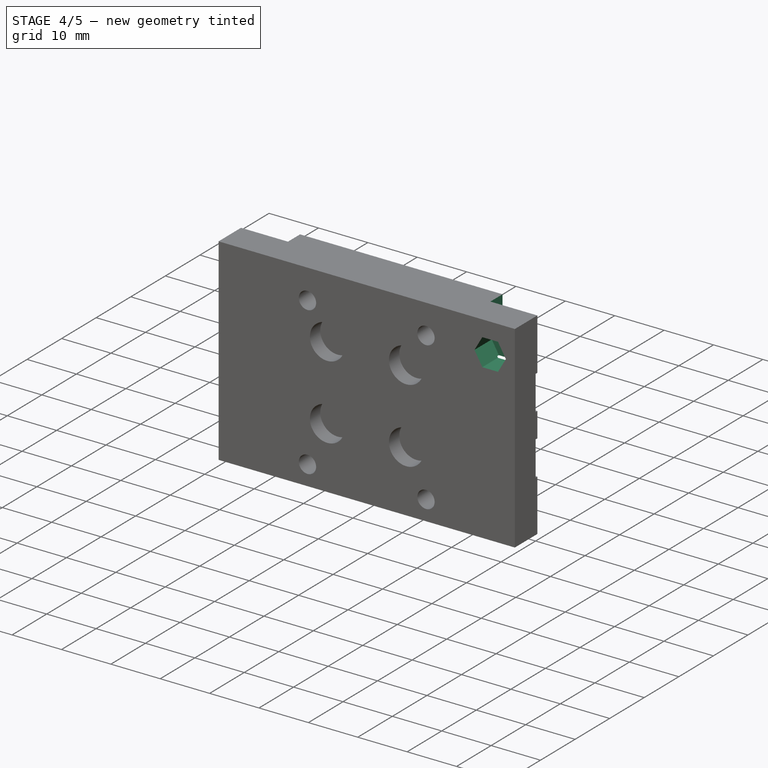
[diagram: stage 4 of 5 — iso view after this stage's code; geometry added in this stage tinted green]
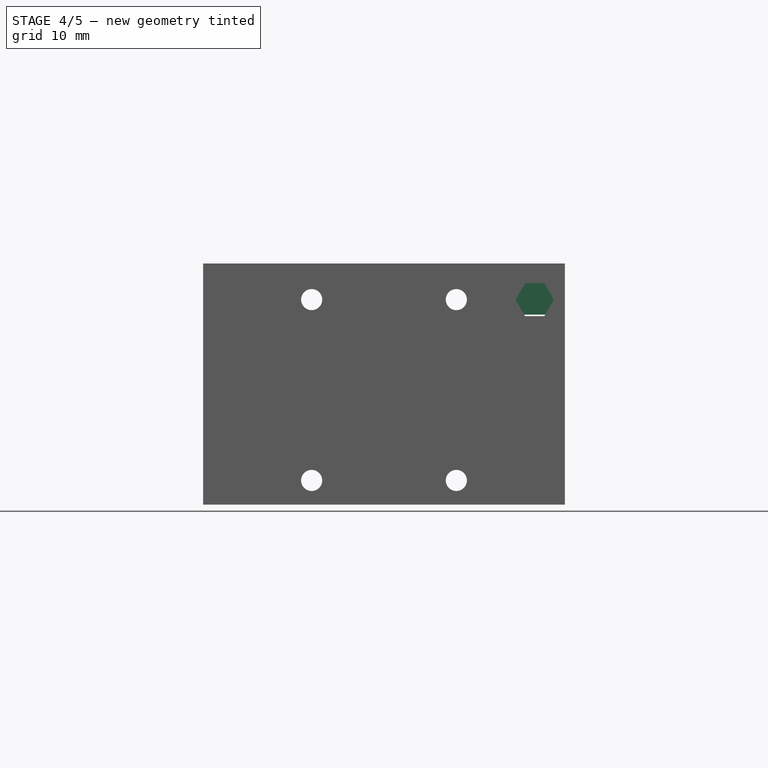
[diagram: stage 4 of 5 — front view after this stage's code; geometry added in this stage tinted green]
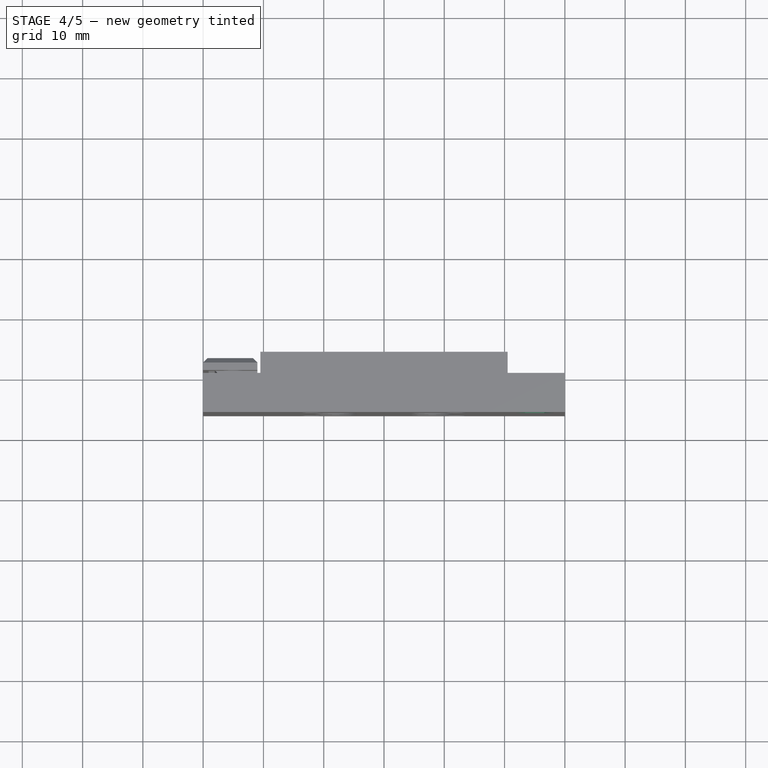
[diagram: stage 4 of 5 — top view after this stage's code; geometry added in this stage tinted green]
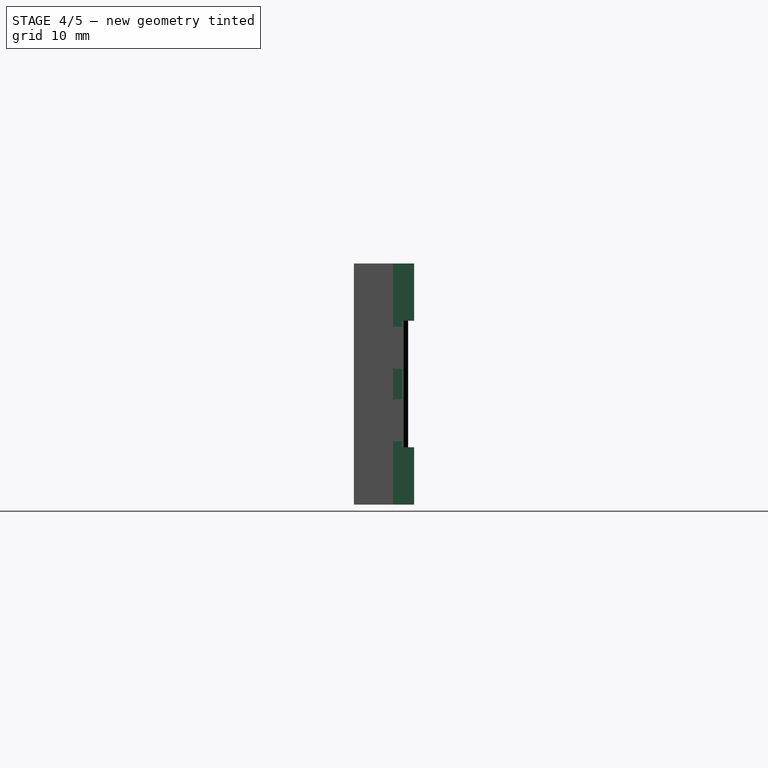
[diagram: stage 4 of 5 — right view after this stage's code; geometry added in this stage tinted green]
FEATURE [Sketcher::SketchObject] Sketch480
  ArcFitTolerance = 1e-06
  AttachmentSupport = -> [XY_Plane307]
  FullyConstrained = true
  MakeInternals = false
  MapMode = 5
  sketch-geometry (6):
    g0: LineSegment StartX=20.5 StartY=-6 StartZ=0 EndX=20.5 EndY=-11.5 EndZ=0
    g1: LineSegment StartX=20.5 StartY=-6 StartZ=0 EndX=30.5 EndY=-6 EndZ=0
    g2: LineSegment StartX=30.5 StartY=-6 StartZ=0 EndX=30.5 EndY=-9 EndZ=0
    g3: LineSegment StartX=30.5 StartY=-9 StartZ=0 EndX=29 EndY=-9 EndZ=0
    g4: LineSegment StartX=29 StartY=-9 StartZ=0 EndX=26.5 EndY=-11.5 EndZ=0
    g5: LineSegment StartX=26.5 StartY=-11.5 StartZ=0 EndX=20.5 EndY=-11.5 EndZ=0
  constraints (18):
    c: Vertical(g0)
    c: DistanceX(g0) = 20.5
    c: Coincident(g0,g1)
    c: Horizontal(g1)
    c: Coincident(g1,g2)
    c: Vertical(g2)
    c: Coincident(g2,g3)
    c: Horizontal(g3)
    c: Coincident(g3,g4)
    c: Coincident(g4,g5)
    c: Coincident(g5,g0)
    c: DistanceY(g0,g0) = 5.5
    c: DistanceY(g0) = -6
    c: Angle(g4) = -2.35619
    c: Horizontal(g5)
    c: DistanceX(g5,g5) = 6
    c: DistanceY(g2,g2) = 3
    c: DistanceX(g1,g1) = 10
FEATURE [PartDesign::Pocket] Pocket007
  BaseFeature = -> MultiTransform001
  Direction = (0,0,-1)
  Length = 23
  Length2 = 5
  Midplane = true
  Placement = pos=(0,0,0) rot=(1,1,1;2.0944rad)
  Profile = -> Sketch480
  ReferenceAxis = -> Sketch480 [N_Axis]
  Refine = true
  Suppressed = false
  Type = 0
FEATURE [Sketcher::SketchObject] Sketch481
  ArcFitTolerance = 1e-06
  AttachmentSupport = -> [XY_Plane307]
  FullyConstrained = true
  MakeInternals = false
  MapMode = 5
  sketch-geometry (4):
    g0: LineSegment StartX=20.5 StartY=-6 StartZ=0 EndX=20.5 EndY=-9.5 EndZ=0
    g1: LineSegment StartX=20.5 StartY=-9.5 StartZ=0 EndX=30 EndY=-9.5 EndZ=0
    g2: LineSegment StartX=30 StartY=-9.5 StartZ=0 EndX=30 EndY=-6 EndZ=0
    g3: LineSegment StartX=30 StartY=-6 StartZ=0 EndX=20.5 EndY=-6 EndZ=0
  constraints (12):
    c: Coincident(g0,g1)
    c: Coincident(g1,g2)
    c: Coincident(g2,g3)
    c: Coincident(g3,g0)
    c: Vertical(g0)
    c: Vertical(g2)
    c: Horizontal(g1)
    c: Horizontal(g3)
    c: DistanceX(g2) = 30
    c: DistanceY(g2) = -6
    c: DistanceY(g2,g2) = 3.5
    c: DistanceX(g3,g3) = 9.5
FEATURE [PartDesign::Pocket] Pocket008
  BaseFeature = -> Pocket007
  Direction = (0,0,-1)
  Length = 5
  Length2 = 5
  Midplane = true
  Placement = pos=(0,0,0) rot=(1,1,1;2.0944rad)
  Profile = -> Sketch481
  ReferenceAxis = -> Sketch481 [N_Axis]
  Refine = true
  Suppressed = false
  Type = 1
FEATURE [Sketcher::SketchObject] Sketch482
  ArcFitTolerance = 1e-06
  AttachmentSupport = -> [XZ_Plane307]
  FullyConstrained = true
  MakeInternals = false
  MapMode = 5
  Placement = pos=(0,0,0) rot=(1,0,0;1.5708rad)
  sketch-geometry (1):
    g0: Circle CenterX=25 CenterY=14 CenterZ=0 NormalX=0 NormalY=0 NormalZ=1 AngleXU=0 Radius=1.75
  constraints (3):
    c: DistanceX(g0) = 25
    c: DistanceY(g0) = 14
    c: Diameter(g0) = 3.5
FEATURE [PartDesign::Pocket] Pocket009
  BaseFeature = -> Pocket008
  Direction = (0,1,-2e-16)
  Length = 10.7
  Length2 = 5
  Placement = pos=(0,0,0) rot=(1,1,1;2.0944rad)
  Profile = -> Sketch482
  ReferenceAxis = -> Sketch482 [N_Axis]
  Refine = true
  Reversed = true
  Suppressed = false
  Type = 0
FEATURE [Sketcher::SketchObject] Sketch483
  ArcFitTolerance = 1e-06
  AttachmentOffset = pos=(0,0,11) rot=(0,0,1;0rad)
  AttachmentSupport = -> [XZ_Plane307]
  FullyConstrained = true
  MakeInternals = false
  MapMode = 5
  Placement = pos=(0,-11,2.4e-15) rot=(1,0,0;1.5708rad)
  sketch-geometry (7):
    g0: LineSegment StartX=28.1754 StartY=14 StartZ=0 EndX=26.5877 EndY=16.75 EndZ=0
    g1: LineSegment StartX=26.5877 StartY=16.75 StartZ=0 EndX=23.4123 EndY=16.75 EndZ=0
    g2: LineSegment StartX=23.4123 StartY=16.75 StartZ=0 EndX=21.8246 EndY=14 EndZ=0
    g3: LineSegment StartX=21.8246 StartY=14 StartZ=0 EndX=23.4123 EndY=11.25 EndZ=0
    g4: LineSegment StartX=23.4123 StartY=11.25 StartZ=0 EndX=26.5877 EndY=11.25 EndZ=0
    g5: LineSegment StartX=26.5877 StartY=11.25 StartZ=0 EndX=28.1754 EndY=14 EndZ=0
    g6: Circle [constr] CenterX=25 CenterY=14 CenterZ=0 NormalX=0 NormalY=0 NormalZ=1 AngleXU=0 Radius=3.17543
  constraints (17):
    c: Coincident(g0,g1)
    c: Coincident(g1,g2)
    c: Coincident(g2,g3)
    c: Coincident(g3,g4)
    c: Coincident(g4,g5)
    c: Coincident(g5,g0)
    c: Equal(g0, g1-g5) x5
    c: PointOnObject(g0,g6)
    c: PointOnObject(g1,g6)
    c: PointOnObject(g2,g6)
    c: PointOnObject(g3,g6)
    c: PointOnObject(g4,g6)
    c: PointOnObject(g5,g6)
    c: Horizontal(g1)
    c: DistanceY(g4,g0) = 5.5
    c: DistanceX(g6) = 25
    c: DistanceY(g6) = 14
FEATURE [PartDesign::Pocket] Pocket010
  BaseFeature = -> Pocket009
  Direction = (0,1,-2e-16)
  Length = 5
  Length2 = 5
  Placement = pos=(0,0,0) rot=(1,1,1;2.0944rad)
  Profile = -> Sketch483
  ReferenceAxis = -> Sketch483 [N_Axis]
  Refine = true
  Reversed = true
  Suppressed = false
  Type = 1
FEATURE [PartDesign::Mirrored] Mirrored005
  BaseFeature = -> Pocket010
  MirrorPlane = -> YZ_Plane307
  Originals = -> [Pocket008,Pocket007]
  Placement = pos=(0,0,0) rot=(1,1,1;2.0944rad)
  Refine = true
  Suppressed = false
  TransformMode = 0
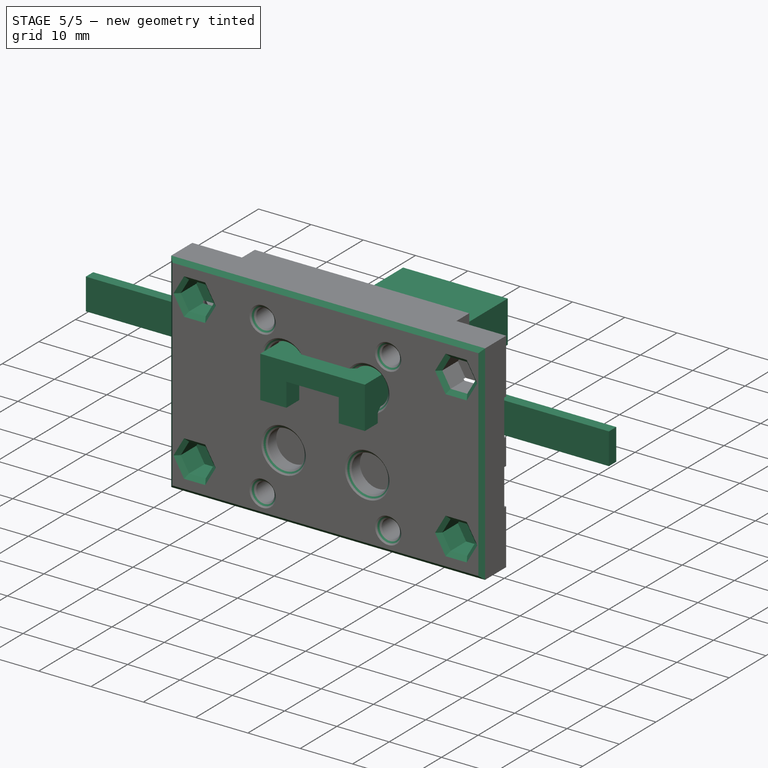
[diagram: stage 5 of 5 — iso view after this stage's code; geometry added in this stage tinted green]
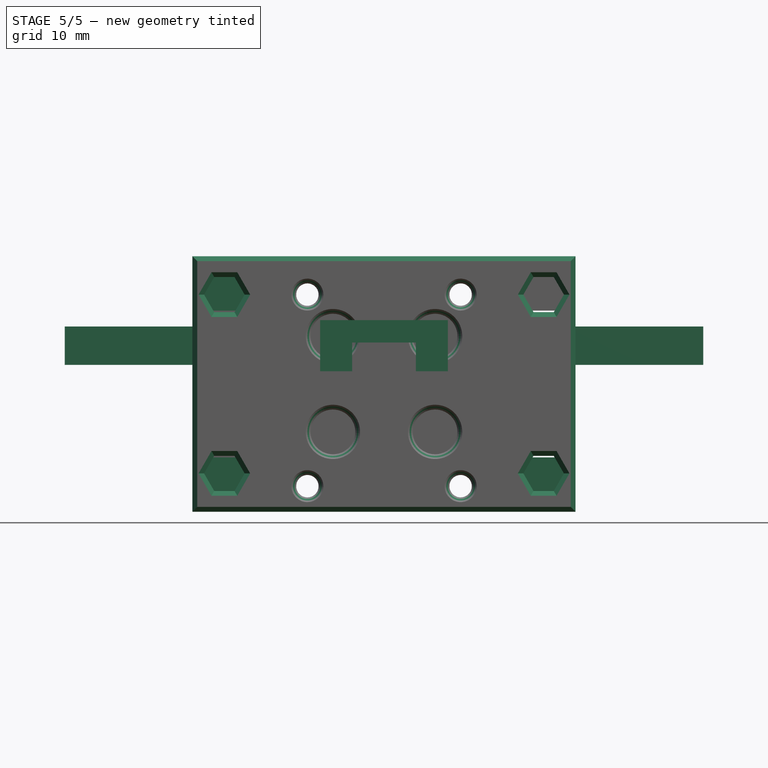
[diagram: stage 5 of 5 — front view after this stage's code; geometry added in this stage tinted green]
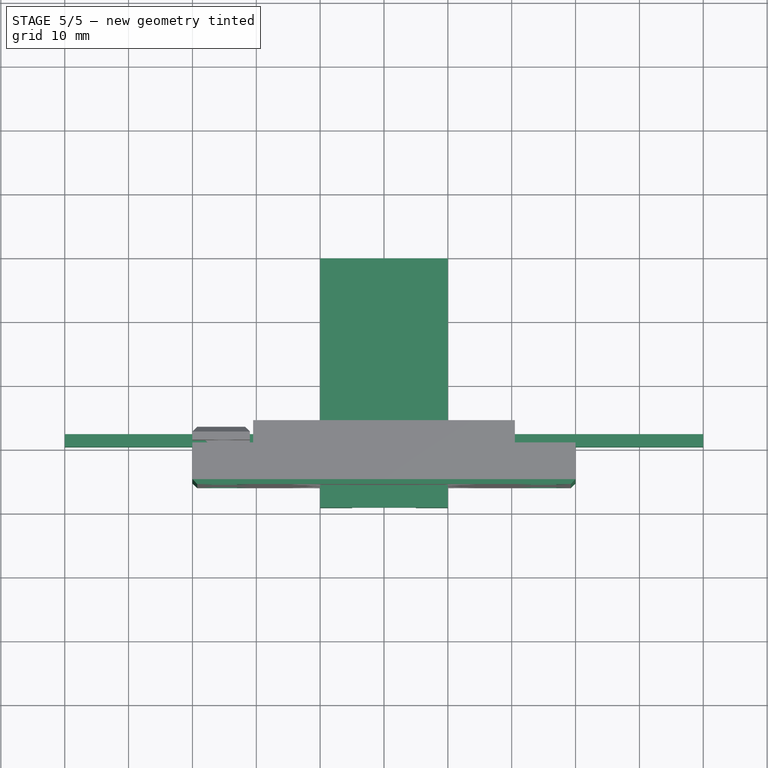
[diagram: stage 5 of 5 — top view after this stage's code; geometry added in this stage tinted green]
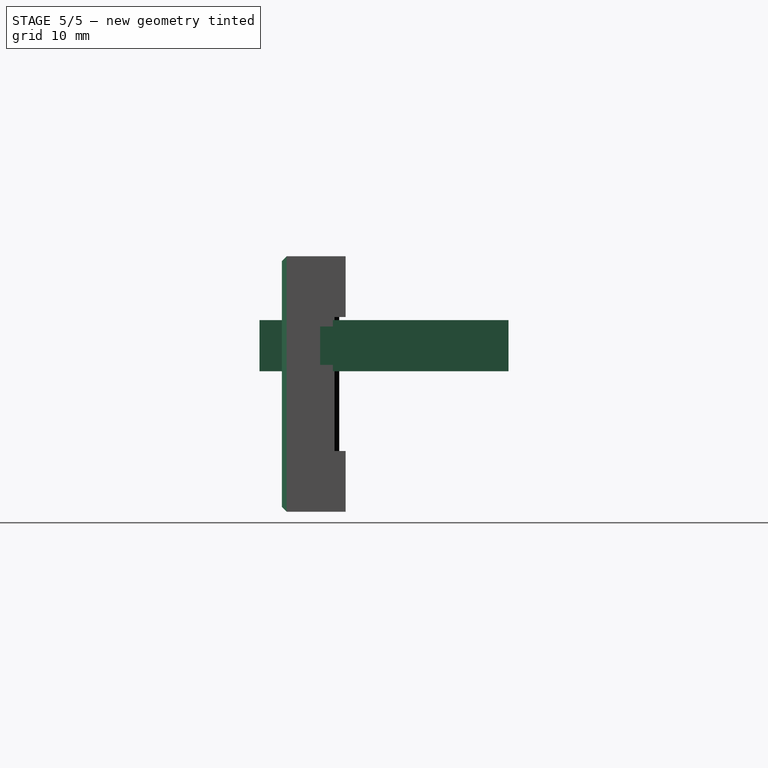
[diagram: stage 5 of 5 — right view after this stage's code; geometry added in this stage tinted green]
FEATURE [Spreadsheet::Sheet] Spreadsheet
  cells = A1='v_wheel_width; B1(v_wheel_width)=10.8; A2='m5_nut_width; B2(m5_nut_width)=8; A3='v_wheel_height; B3(v_wheel_height)=19
FEATURE [Sketcher::SketchObject] Sketch468
  ArcFitTolerance = 1e-06
  AttachmentSupport = -> [XZ_Plane293]
  FullyConstrained = true
  MakeInternals = false
  MapMode = 5
  Placement = pos=(0,0,0) rot=(1,0,0;1.5708rad)
  sketch-geometry (8):
    g0: LineSegment StartX=-10 StartY=10 StartZ=0 EndX=-10 EndY=2 EndZ=0
    g1: LineSegment StartX=-10 StartY=2 StartZ=0 EndX=-5 EndY=2 EndZ=0
    g2: LineSegment StartX=10 StartY=2 StartZ=0 EndX=10 EndY=10 EndZ=0
    g3: LineSegment StartX=10 StartY=10 StartZ=0 EndX=-10 EndY=10 EndZ=0
    g4: LineSegment StartX=-5 StartY=2 StartZ=0 EndX=-5 EndY=6.5 EndZ=0
    g5: LineSegment StartX=-5 StartY=6.5 StartZ=0 EndX=5 EndY=6.5 EndZ=0
    g6: LineSegment StartX=5 StartY=6.5 StartZ=0 EndX=5 EndY=2 EndZ=0
    g7: LineSegment StartX=5 StartY=2 StartZ=0 EndX=10 EndY=2 EndZ=0
  constraints (23):
    c: Coincident(g0,g1)
    c: Coincident(g7,g2)
    c: Coincident(g2,g3)
    c: Coincident(g3,g0)
    c: Vertical(g0)
    c: Vertical(g2)
    c: Horizontal(g1)
    c: Symmetric(g2,g0,g-2)
    c: DistanceX(g3,g3) = 20
    c: DistanceY(g2) = 10
    c: DistanceY(g7) = 2
    c: Vertical(g4)
    c: Coincident(g4,g5)
    c: Coincident(g5,g6)
    c: PointOnObject(g6,g7)
    c: Vertical(g6)
    c: Coincident(g1,g4)
    c: PointOnObject(g7,g6)
    c: Symmetric(g5,g4,g-2)
    c: DistanceX(g5,g5) = 10
    c: DistanceY(g5) = 6.5
    c: Horizontal(g7)
    c: Horizontal(g1,g6)
FEATURE [PartDesign::Pad] Pad102
  Direction = (0,-1,2e-16)
  Length = 39
  Length2 = 10
  Midplane = true
  Placement = pos=(0,0,0) rot=(1,0,0;1.5708rad)
  Profile = -> Sketch468
  ReferenceAxis = -> Sketch468 [N_Axis]
  Suppressed = false
  Type = 0
FEATURE [PartDesign::Body] Body154  label="carriage-mgn9h-drv"
  AllowCompound = false
  Group = -> [Sketch468,Pad102]
  Origin = -> Origin294
  Tip = -> Pad102
FEATURE [App::DocumentObjectGroup] Group  label="drv"
  Group = -> [Body154]
FEATURE [PartDesign::FeatureBase] Clone
  BaseFeature = -> Body154
  Suppressed = false
FEATURE [Sketcher::SketchObject] Sketch475
  ArcFitTolerance = 1e-06
  AttachmentOffset = pos=(0,0,6) rot=(0,0,1;0rad)
  AttachmentSupport = -> [XY_Plane308]
  FullyConstrained = true
  MakeInternals = false
  MapMode = 5
  Placement = pos=(0,0,6) rot=(0,0,1;0rad)
  sketch-geometry (5):
    g0: LineSegment StartX=-50 StartY=-8 StartZ=0 EndX=-50 EndY=-10 EndZ=0
    g1: LineSegment StartX=-50 StartY=-10 StartZ=0 EndX=50 EndY=-10 EndZ=0
    g2: LineSegment StartX=50 StartY=-10 StartZ=0 EndX=50 EndY=-8 EndZ=0
    g3: LineSegment StartX=50 StartY=-8 StartZ=0 EndX=-50 EndY=-8 EndZ=0
    g4: GeomPoint X=50 Y=-9 Z=0
  constraints (12):
    c: Coincident(g0,g1)
    c: Coincident(g1,g2)
    c: Coincident(g2,g3)
    c: Coincident(g3,g0)
    c: Vertical(g0)
    c: Vertical(g2)
    c: Horizontal(g1)
    c: Symmetric(g2,g0,g-2)
    c: DistanceY(g2,g2) = 2
    c: Symmetric(g2,g2,g4)
    c: DistanceY(g4) = -9
    c: DistanceX(g3,g3) = 100
FEATURE [PartDesign::Pad] Pad103
  Direction = (0,0,1)
  Length = 6
  Length2 = 10
  Midplane = true
  Profile = -> Sketch475
  ReferenceAxis = -> Sketch475 [N_Axis]
  Refine = true
  Suppressed = false
  Type = 0
FEATURE [PartDesign::Mirrored] Mirrored006
  MirrorPlane = -> YZ_Plane307
  Placement = pos=(0,0,0) rot=(1,1,1;2.0944rad)
  Refine = true
  Suppressed = false
  TransformMode = 0
FEATURE [PartDesign::Mirrored] Mirrored007
  MirrorPlane = -> XY_Plane307
  Placement = pos=(0,0,0) rot=(1,1,1;2.0944rad)
  Refine = true
  Suppressed = false
  TransformMode = 0
FEATURE [PartDesign::MultiTransform] MultiTransform002
  BaseFeature = -> Mirrored005
  Originals = -> [Pocket010,Pocket009]
  Placement = pos=(0,0,0) rot=(1,1,1;2.0944rad)
  Refine = true
  Suppressed = false
  TransformMode = 0
  Transformations = -> [Mirrored006,Mirrored007]
FEATURE [PartDesign::Chamfer] Chamfer
  Angle = 45
  Base = -> MultiTransform002 [Face3]
  BaseFeature = -> MultiTransform002
  ChamferType = 0
  FlipDirection = false
  Placement = pos=(0,0,0) rot=(1,1,1;2.0944rad)
  Refine = true
  Size = 0.75
  Size2 = 1
  SupportTransform = false
  Suppressed = false
  UseAllEdges = false
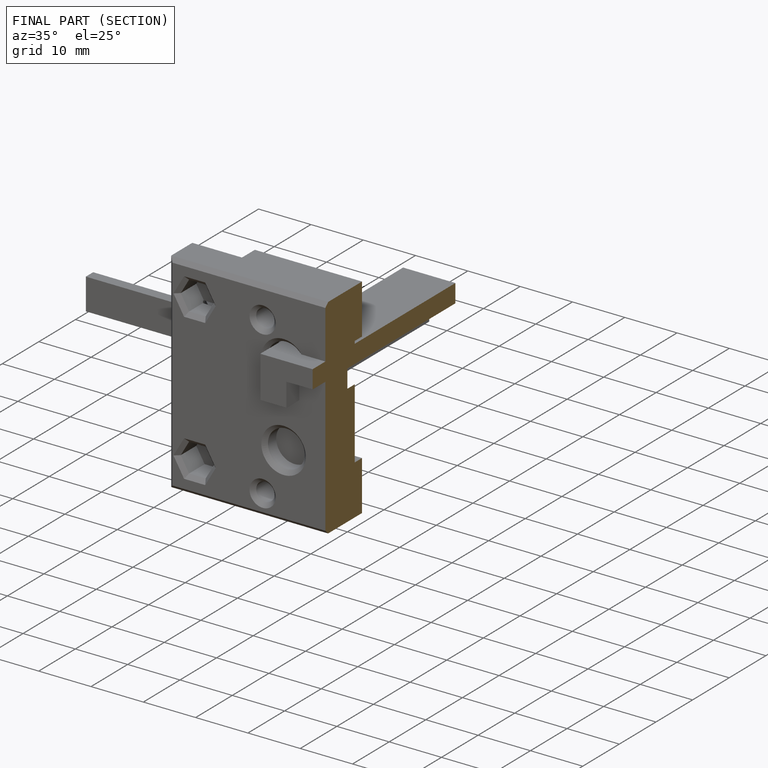
[diagram: finished part — half-section view (interior)]
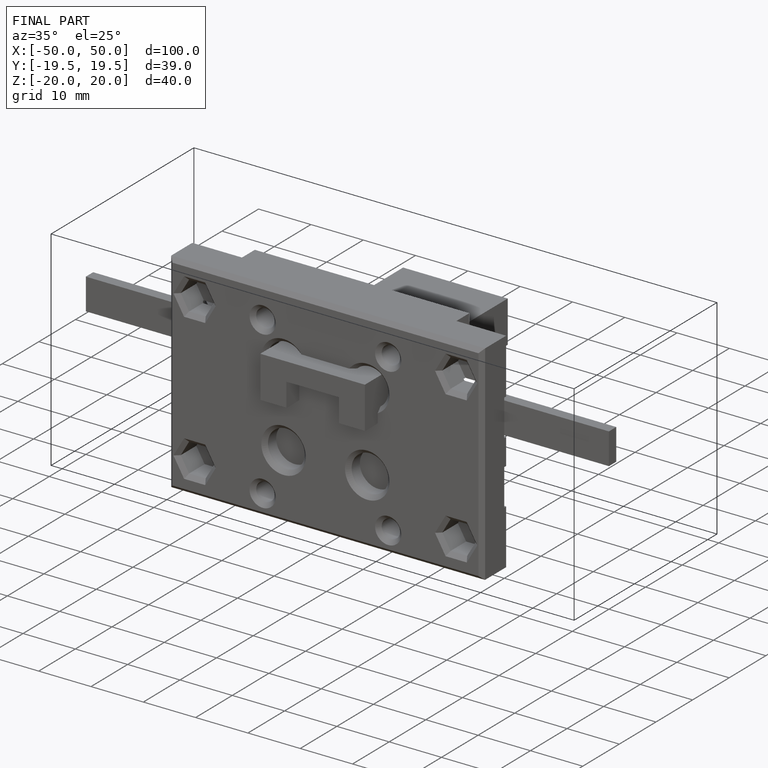
[diagram: finished part — iso view with bounding-box wireframe]
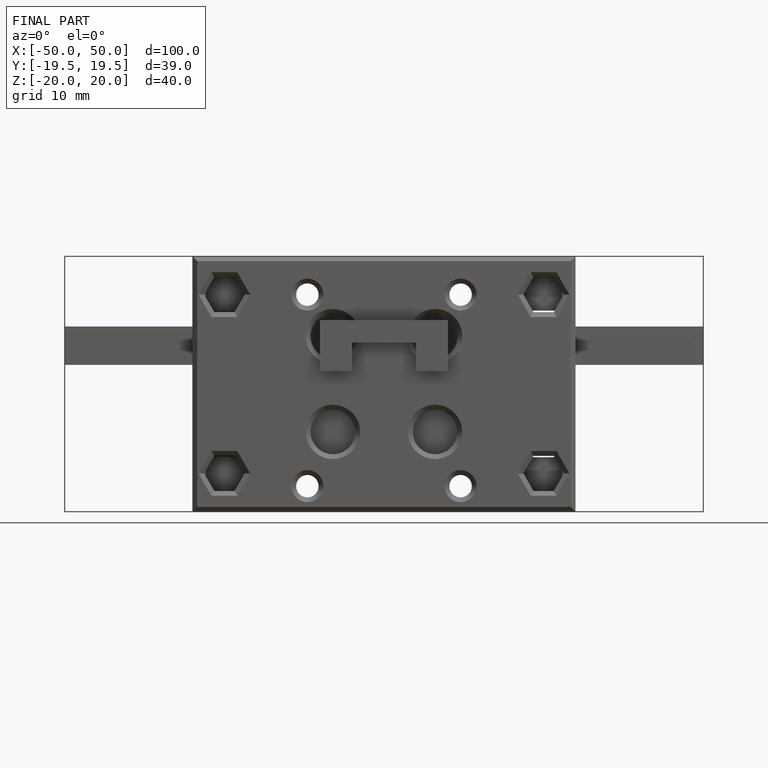
[diagram: finished part — front view with bounding-box wireframe]
